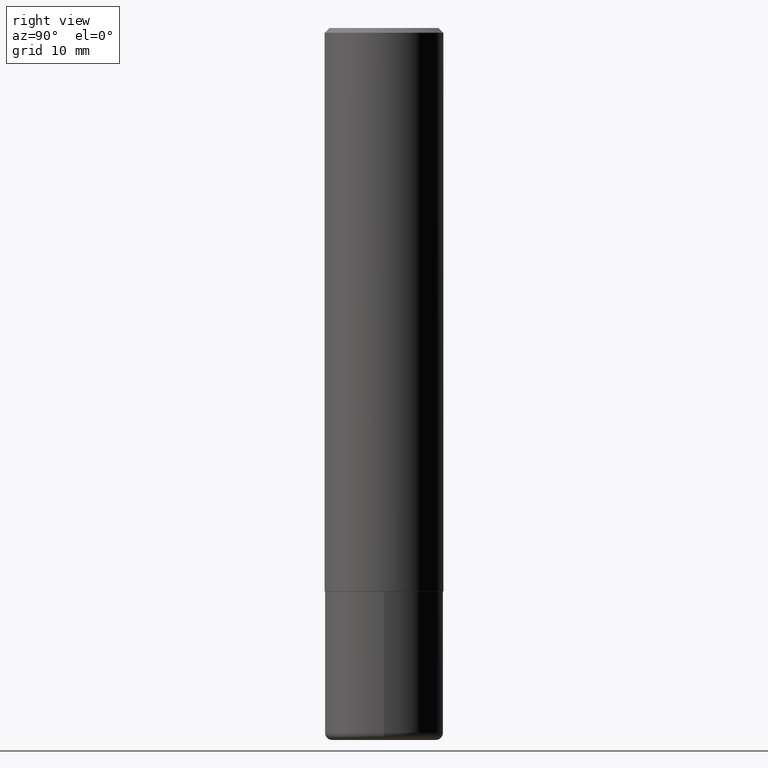
[diagram: clean part render]
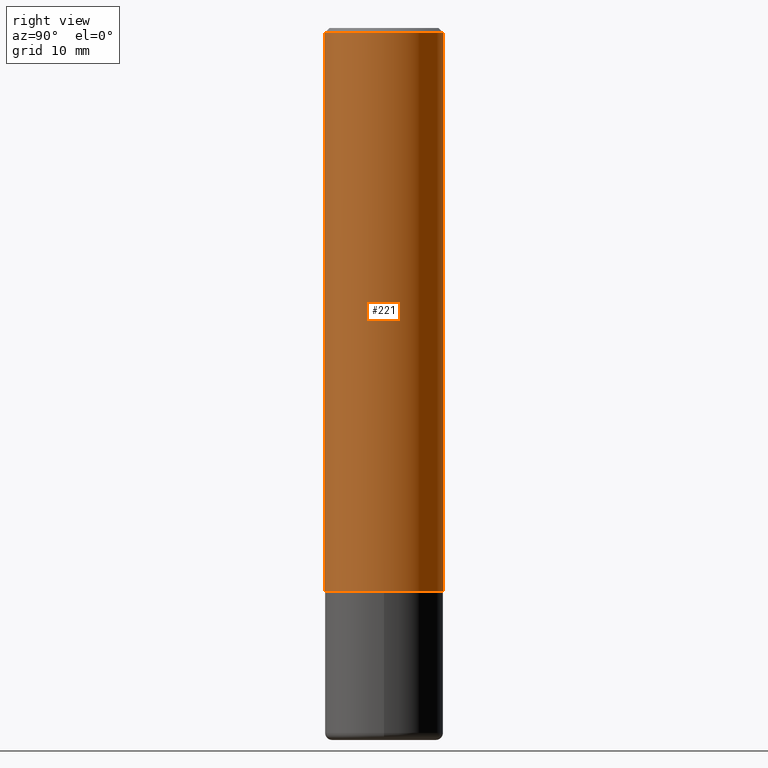
[diagram: same view with one face highlighted and labeled with its STEP entity id]
A machine part, right view. The second image highlights one B-rep face of the part: STEP entity #221.
In plain terms, the highlighted cylindrical surface (partial cylindrical patch) has radius 6.35 mm, axis along (-0, 0, 1).
Its self-contained STEP definition (entity closure, byte-faithful):
#18 = ORIENTED_EDGE ( 'NONE', *, *, #271, .F. ) ;
#21 = AXIS2_PLACEMENT_3D ( 'NONE', #259, #291, #313 ) ;
#24 = CARTESIAN_POINT ( 'NONE',  ( -1.745740669421567467E-15, -0.2500000000000001110, 8.727769067796535567E-16 ) ) ;
#39 = DIRECTION ( 'NONE',  ( -6.982962677686265922E-15, -1.000000000000000000, 3.278217592397112312E-15 ) ) ;
#41 = AXIS2_PLACEMENT_3D ( 'NONE', #230, #137, #60 ) ;
#60 = DIRECTION ( 'NONE',  ( -6.982962677686266711E-15, -1.000000000000000000, 3.491107627118612649E-15 ) ) ;
#63 = CARTESIAN_POINT ( 'NONE',  ( -1.715124499442882299E-15, -0.2500000000000000555, -0.01999999999999918510 ) ) ;
#93 = CYLINDRICAL_SURFACE ( 'NONE', #41, 0.2500000000000001110 ) ;
#98 = VECTOR ( 'NONE', #281, 39.37007874015748143 ) ;
#126 = CARTESIAN_POINT ( 'NONE',  ( 1.776356839400251254E-15, 0.2500000000000001110, -8.727769067796535567E-16 ) ) ;
#137 = DIRECTION ( 'NONE',  ( -2.445729767687599458E-29, 3.491107627118612255E-15, 1.000000000000000000 ) ) ;
#139 = DIRECTION ( 'NONE',  ( -2.445729767687599458E-29, 3.491107627118612255E-15, 1.000000000000000000 ) ) ;
#144 = CIRCLE ( 'NONE', #146, 0.2500000000000002776 ) ;
#146 = AXIS2_PLACEMENT_3D ( 'NONE', #174, #139, #39 ) ;
#149 = VERTEX_POINT ( 'NONE', #276 ) ;
#151 = VECTOR ( 'NONE', #168, 39.37007874015748143 ) ;
#160 = ORIENTED_EDGE ( 'NONE', *, *, #394, .T. ) ;
#168 = DIRECTION ( 'NONE',  ( -2.445729767687599458E-29, 3.491107627118612649E-15, 1.000000000000000000 ) ) ;
#174 = CARTESIAN_POINT ( 'NONE',  ( 5.806162468490361962E-29, -8.287889506779587323E-15, -2.374000000000000110 ) ) ;
#201 = VERTEX_POINT ( 'NONE', #317 ) ;
#221 = ADVANCED_FACE ( 'NONE', ( #323 ), #93, .T. ) ;
#230 = CARTESIAN_POINT ( 'NONE',  ( 0.000000000000000000, 0.000000000000000000, 0.000000000000000000 ) ) ;
#235 = VERTEX_POINT ( 'NONE', #63 ) ;
#236 = ORIENTED_EDGE ( 'NONE', *, *, #365, .T. ) ;
#259 = CARTESIAN_POINT ( 'NONE',  ( 4.891459535375212615E-31, -6.982215254237243146E-17, -0.02000000000000005593 ) ) ;
#271 = EDGE_CURVE ( 'NONE', #235, #201, #390, .T. ) ;
#273 = ORIENTED_EDGE ( 'NONE', *, *, #352, .F. ) ;
#276 = CARTESIAN_POINT ( 'NONE',  ( -1.745740669421510471E-15, -0.2500000000000085487, -2.373999999999999222 ) ) ;
#281 = DIRECTION ( 'NONE',  ( -2.445729767687599458E-29, 3.491107627118612649E-15, 1.000000000000000000 ) ) ;
#282 = EDGE_LOOP ( 'NONE', ( #160, #236, #18, #273 ) ) ;
#291 = DIRECTION ( 'NONE',  ( -2.445729767687599458E-29, 3.491107627118612255E-15, 1.000000000000000000 ) ) ;
#311 = LINE ( 'NONE', #24, #98 ) ;
#313 = DIRECTION ( 'NONE',  ( -6.982962677686265922E-15, -1.000000000000000000, 3.483106191921935554E-15 ) ) ;
#317 = CARTESIAN_POINT ( 'NONE',  ( 1.745740669421566875E-15, 0.2499999999999999167, -0.02000000000000092676 ) ) ;
#323 = FACE_OUTER_BOUND ( 'NONE', #282, .T. ) ;
#352 = EDGE_CURVE ( 'NONE', #149, #235, #311, .T. ) ;
#365 = EDGE_CURVE ( 'NONE', #372, #201, #412, .T. ) ;
#372 = VERTEX_POINT ( 'NONE', #395 ) ;
#390 = CIRCLE ( 'NONE', #21, 0.2500000000000000000 ) ;
#394 = EDGE_CURVE ( 'NONE', #149, #372, #144, .T. ) ;
#395 = CARTESIAN_POINT ( 'NONE',  ( 1.776356839400280836E-15, 0.2499999999999919786, -2.374000000000000998 ) ) ;
#412 = LINE ( 'NONE', #126, #151 ) ;